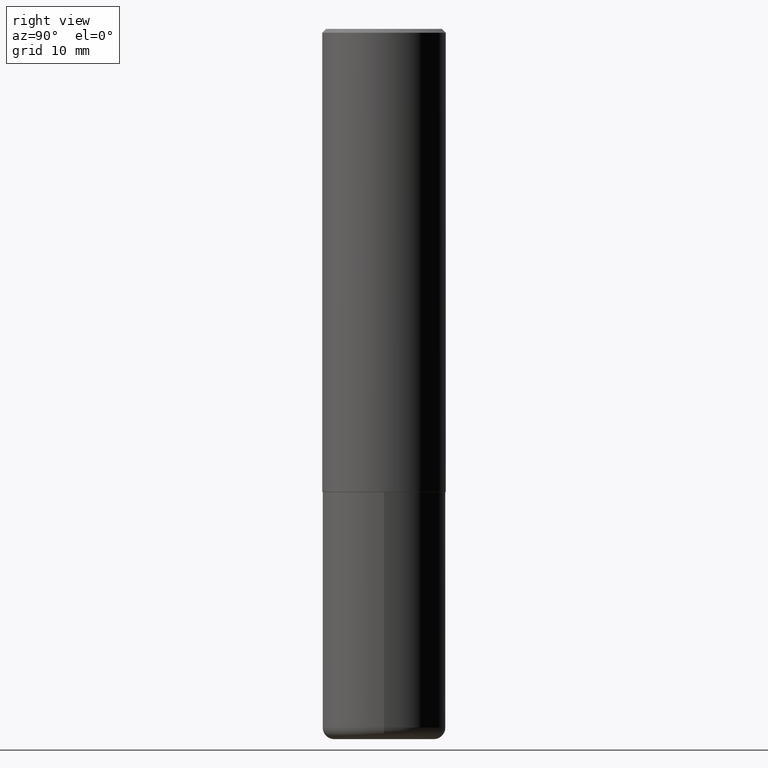
[diagram: clean part render]
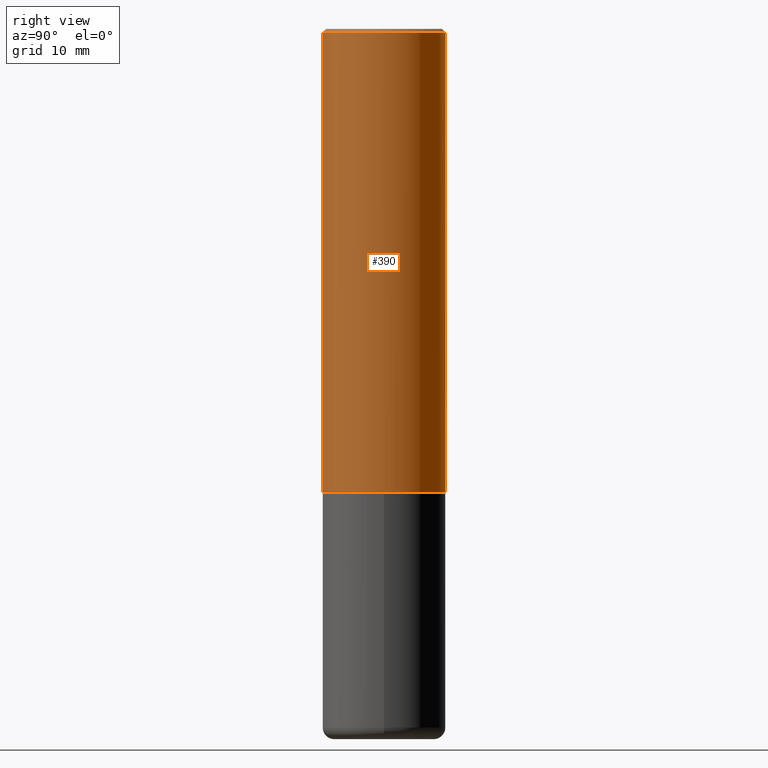
[diagram: same view with one face highlighted and labeled with its STEP entity id]
A machine part, right view. The second image highlights one B-rep face of the part: STEP entity #390.
In plain terms, the highlighted cylindrical surface (partial cylindrical patch) has radius 7.9997 mm, axis along (-0, 0, 1).
Its self-contained STEP definition (entity closure, byte-faithful):
#3 = VERTEX_POINT ( 'NONE', #195 ) ;
#14 = CIRCLE ( 'NONE', #244, 0.3149500000000000077 ) ;
#38 = EDGE_CURVE ( 'NONE', #163, #3, #14, .T. ) ;
#65 = CYLINDRICAL_SURFACE ( 'NONE', #197, 0.3149500000000001743 ) ;
#71 = EDGE_CURVE ( 'NONE', #379, #3, #277, .T. ) ;
#86 = DIRECTION ( 'NONE',  ( -2.445169622182784195E-29, 3.491909787363009980E-15, 1.000000000000000000 ) ) ;
#91 = CARTESIAN_POINT ( 'NONE',  ( 2.237854346276465567E-15, 0.3149499999999920141, -2.361200000000000632 ) ) ;
#124 = EDGE_LOOP ( 'NONE', ( #221, #130, #349, #353 ) ) ;
#130 = ORIENTED_EDGE ( 'NONE', *, *, #71, .T. ) ;
#134 = VECTOR ( 'NONE', #86, 39.37007874015748143 ) ;
#145 = CARTESIAN_POINT ( 'NONE',  ( -2.160713844398143363E-15, -0.3149500000000000632, -0.01999999999999896652 ) ) ;
#154 = VERTEX_POINT ( 'NONE', #297 ) ;
#156 = DIRECTION ( 'NONE',  ( -2.445169622182784195E-29, 3.491909787363010375E-15, 1.000000000000000000 ) ) ;
#163 = VERTEX_POINT ( 'NONE', #145 ) ;
#169 = EDGE_CURVE ( 'NONE', #154, #379, #215, .T. ) ;
#193 = CARTESIAN_POINT ( 'NONE',  ( 0.000000000000000000, 0.000000000000000000, 0.000000000000000000 ) ) ;
#195 = CARTESIAN_POINT ( 'NONE',  ( 2.199284095337289871E-15, 0.3149499999999999522, -0.02000000000000116962 ) ) ;
#197 = AXIS2_PLACEMENT_3D ( 'NONE', #193, #346, #316 ) ;
#205 = DIRECTION ( 'NONE',  ( -6.982962677686265922E-15, -1.000000000000000000, 3.496670018878889100E-15 ) ) ;
#215 = CIRCLE ( 'NONE', #377, 0.3149500000000002853 ) ;
#221 = ORIENTED_EDGE ( 'NONE', *, *, #169, .T. ) ;
#244 = AXIS2_PLACEMENT_3D ( 'NONE', #263, #354, #205 ) ;
#253 = LINE ( 'NONE', #380, #290 ) ;
#255 = DIRECTION ( 'NONE',  ( -2.445169622182784195E-29, 3.491909787363009980E-15, 1.000000000000000000 ) ) ;
#263 = CARTESIAN_POINT ( 'NONE',  ( 4.890339244365585170E-31, -6.983819574726043281E-17, -0.02000000000000006981 ) ) ;
#270 = DIRECTION ( 'NONE',  ( -6.982962677686265922E-15, -1.000000000000000000, 3.469564049740290009E-15 ) ) ;
#271 = CARTESIAN_POINT ( 'NONE',  ( 5.773534511897989086E-29, -8.245097389921538599E-15, -2.361199999999999743 ) ) ;
#277 = LINE ( 'NONE', #362, #134 ) ;
#290 = VECTOR ( 'NONE', #255, 39.37007874015748143 ) ;
#297 = CARTESIAN_POINT ( 'NONE',  ( -2.199284095337233467E-15, -0.3149500000000085564, -2.361199999999998411 ) ) ;
#316 = DIRECTION ( 'NONE',  ( -6.982962677686264344E-15, -1.000000000000000000, 3.491909787363010375E-15 ) ) ;
#344 = FACE_OUTER_BOUND ( 'NONE', #124, .T. ) ;
#346 = DIRECTION ( 'NONE',  ( -2.445169622182784195E-29, 3.491909787363010375E-15, 1.000000000000000000 ) ) ;
#347 = EDGE_CURVE ( 'NONE', #154, #163, #253, .T. ) ;
#349 = ORIENTED_EDGE ( 'NONE', *, *, #38, .F. ) ;
#353 = ORIENTED_EDGE ( 'NONE', *, *, #347, .F. ) ;
#354 = DIRECTION ( 'NONE',  ( -2.445169622182784195E-29, 3.491909787363010375E-15, 1.000000000000000000 ) ) ;
#362 = CARTESIAN_POINT ( 'NONE',  ( 2.237854346276435985E-15, 0.3149500000000001743, -1.099776987529980703E-15 ) ) ;
#377 = AXIS2_PLACEMENT_3D ( 'NONE', #271, #156, #270 ) ;
#379 = VERTEX_POINT ( 'NONE', #91 ) ;
#380 = CARTESIAN_POINT ( 'NONE',  ( -2.199284095337290265E-15, -0.3149500000000001743, 1.099776987529980703E-15 ) ) ;
#390 = ADVANCED_FACE ( 'NONE', ( #344 ), #65, .T. ) ;